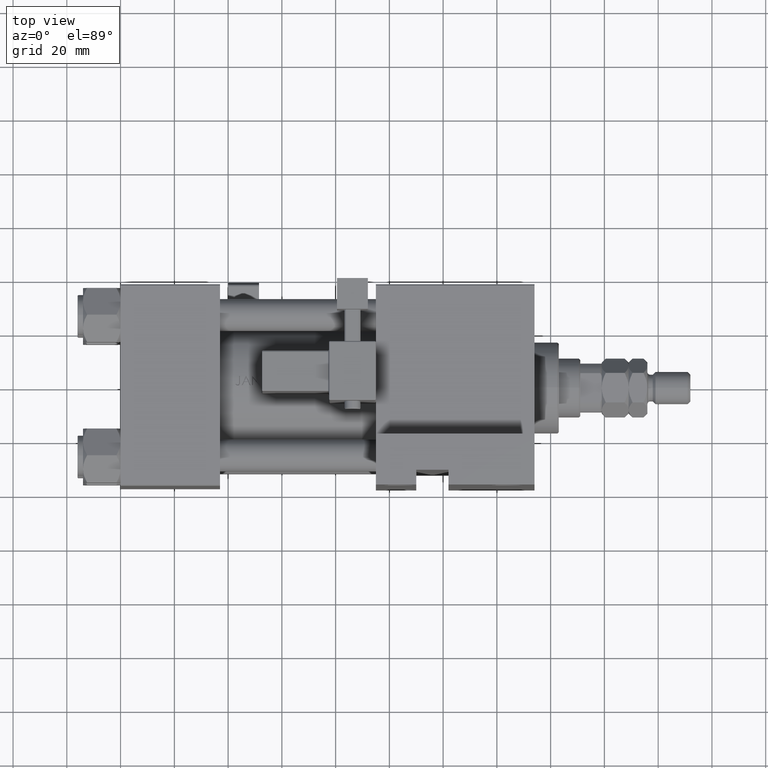
[diagram: clean part render]
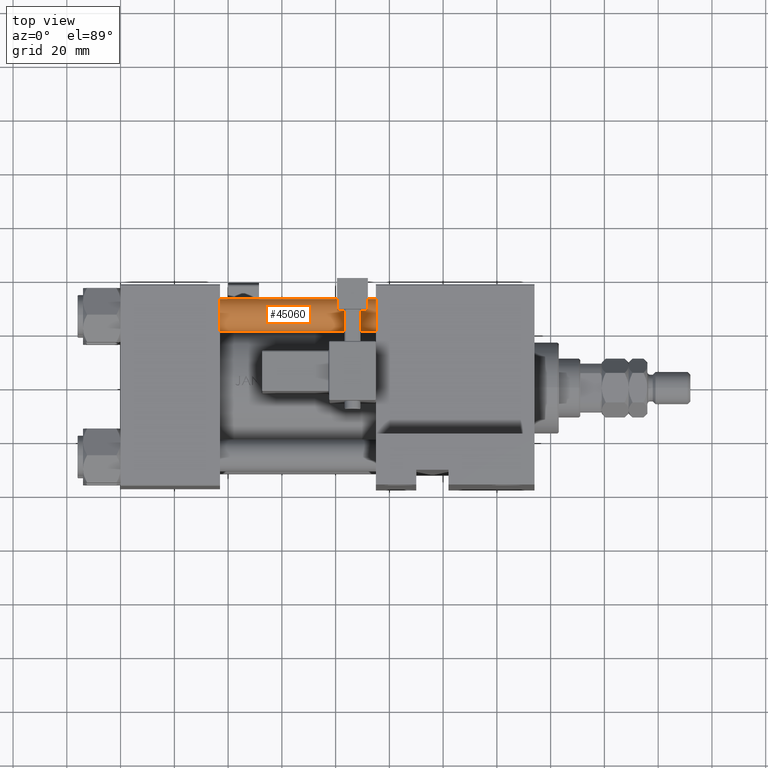
[diagram: same view with one face highlighted and labeled with its STEP entity id]
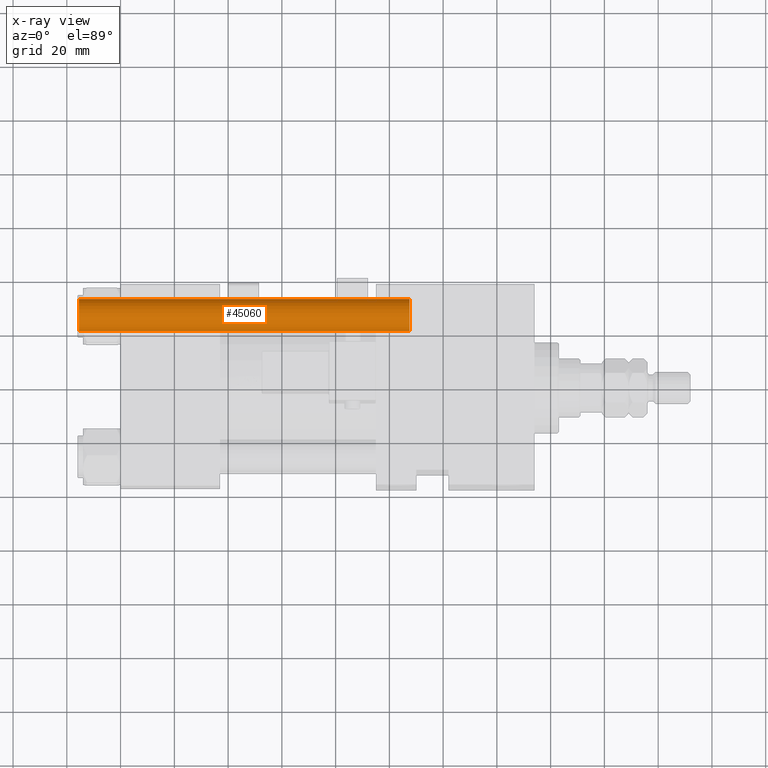
[diagram: x-ray of the same camera — body ghosted, the highlighted face saturated]
A machine part, top view. The second image highlights one B-rep face of the part: STEP entity #45060.
The next image is the same camera in x-ray: the body ghosted, the highlighted face saturated — about 0% of this face is hidden behind the body in this view.
In plain terms, the highlighted cylindrical surface (edge-blend (fillet) strip) has radius 6 mm, axis along (1, -0, 0).
Its self-contained STEP definition (entity closure, byte-faithful):
#2077 = CARTESIAN_POINT ( 'NONE',  ( 6.000000000000000888, 7.347880794884120722E-16, 0.4999999999999865663 ) ) ;
#7552 = AXIS2_PLACEMENT_3D ( 'NONE', #7808, #36147, #39268 ) ;
#7604 = DIRECTION ( 'NONE',  ( -0.000000000000000000, -0.000000000000000000, -1.000000000000000000 ) ) ;
#7808 = CARTESIAN_POINT ( 'NONE',  ( 0.000000000000000000, 0.000000000000000000, 0.4999999999999865663 ) ) ;
#8385 = LINE ( 'NONE', #24240, #33363 ) ;
#9682 = ORIENTED_EDGE ( 'NONE', *, *, #46224, .F. ) ;
#10107 = AXIS2_PLACEMENT_3D ( 'NONE', #42677, #19024, #15114 ) ;
#10113 = AXIS2_PLACEMENT_3D ( 'NONE', #45070, #48721, #17759 ) ;
#11977 = EDGE_CURVE ( 'NONE', #38642, #24520, #32514, .T. ) ;
#12280 = ORIENTED_EDGE ( 'NONE', *, *, #40291, .T. ) ;
#13923 = CARTESIAN_POINT ( 'NONE',  ( -6.000000000000000888, 0.000000000000000000, 0.4999999999999865663 ) ) ;
#14488 = VERTEX_POINT ( 'NONE', #13923 ) ;
#15114 = DIRECTION ( 'NONE',  ( 1.000000000000000000, 0.000000000000000000, 0.000000000000000000 ) ) ;
#17518 = CIRCLE ( 'NONE', #7552, 6.000000000000000888 ) ;
#17759 = DIRECTION ( 'NONE',  ( -1.000000000000000000, 0.000000000000000000, 0.000000000000000000 ) ) ;
#19024 = DIRECTION ( 'NONE',  ( 0.000000000000000000, 0.000000000000000000, -1.000000000000000000 ) ) ;
#20601 = DIRECTION ( 'NONE',  ( -0.000000000000000000, -0.000000000000000000, -1.000000000000000000 ) ) ;
#21341 = ORIENTED_EDGE ( 'NONE', *, *, #11977, .T. ) ;
#21375 = EDGE_CURVE ( 'NONE', #24520, #14488, #39074, .T. ) ;
#24240 = CARTESIAN_POINT ( 'NONE',  ( 6.000000000000000888, 7.347880794884120722E-16, 124.0000000000000000 ) ) ;
#24520 = VERTEX_POINT ( 'NONE', #30223 ) ;
#28659 = VECTOR ( 'NONE', #7604, 1000.000000000000000 ) ;
#30223 = CARTESIAN_POINT ( 'NONE',  ( -6.000000000000000888, 0.000000000000000000, 123.5000000000000426 ) ) ;
#32514 = CIRCLE ( 'NONE', #10107, 6.000000000000000888 ) ;
#33363 = VECTOR ( 'NONE', #20601, 1000.000000000000000 ) ;
#36147 = DIRECTION ( 'NONE',  ( -0.000000000000000000, -0.000000000000000000, 1.000000000000000000 ) ) ;
#37720 = ORIENTED_EDGE ( 'NONE', *, *, #21375, .T. ) ;
#38642 = VERTEX_POINT ( 'NONE', #43209 ) ;
#39074 = LINE ( 'NONE', #43224, #28659 ) ;
#39268 = DIRECTION ( 'NONE',  ( 1.000000000000000000, 0.000000000000000000, 0.000000000000000000 ) ) ;
#40291 = EDGE_CURVE ( 'NONE', #14488, #40591, #17518, .T. ) ;
#40591 = VERTEX_POINT ( 'NONE', #2077 ) ;
#42677 = CARTESIAN_POINT ( 'NONE',  ( 0.000000000000000000, 0.000000000000000000, 123.5000000000000426 ) ) ;
#43209 = CARTESIAN_POINT ( 'NONE',  ( 6.000000000000000888, 7.347880794884120722E-16, 123.5000000000000426 ) ) ;
#43224 = CARTESIAN_POINT ( 'NONE',  ( -6.000000000000000888, 0.000000000000000000, 124.0000000000000000 ) ) ;
#45060 = ADVANCED_FACE ( 'NONE', ( #49502 ), #45579, .T. ) ;
#45070 = CARTESIAN_POINT ( 'NONE',  ( 0.000000000000000000, 0.000000000000000000, 124.0000000000000000 ) ) ;
#45579 = CYLINDRICAL_SURFACE ( 'NONE', #10113, 6.000000000000000888 ) ;
#46224 = EDGE_CURVE ( 'NONE', #38642, #40591, #8385, .T. ) ;
#48721 = DIRECTION ( 'NONE',  ( -0.000000000000000000, -0.000000000000000000, -1.000000000000000000 ) ) ;
#49502 = FACE_OUTER_BOUND ( 'NONE', #50421, .T. ) ;
#50421 = EDGE_LOOP ( 'NONE', ( #9682, #21341, #37720, #12280 ) ) ;